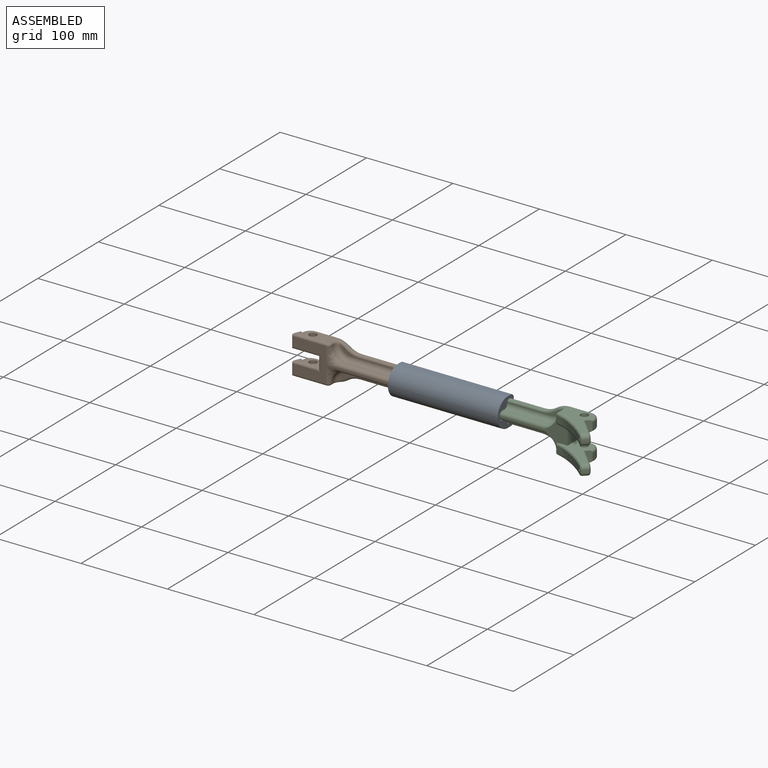
[diagram: assembled view]
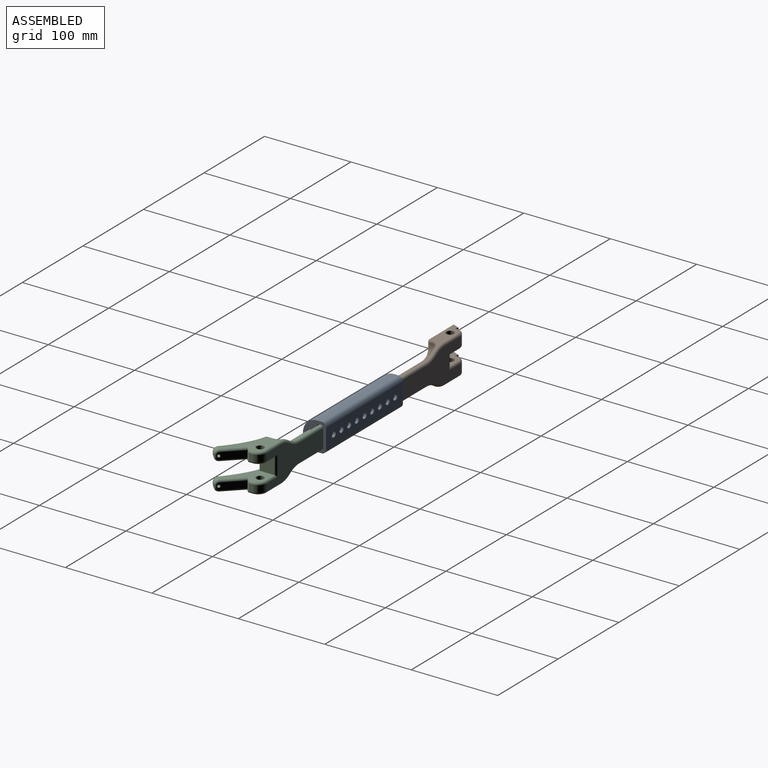
[diagram: assembled view, second angle]
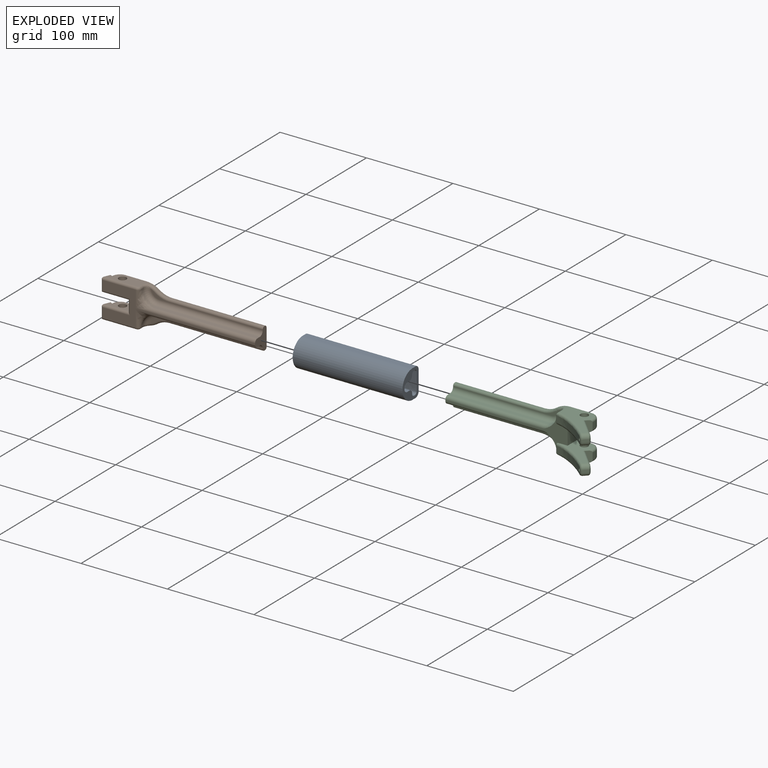
[diagram: exploded view]
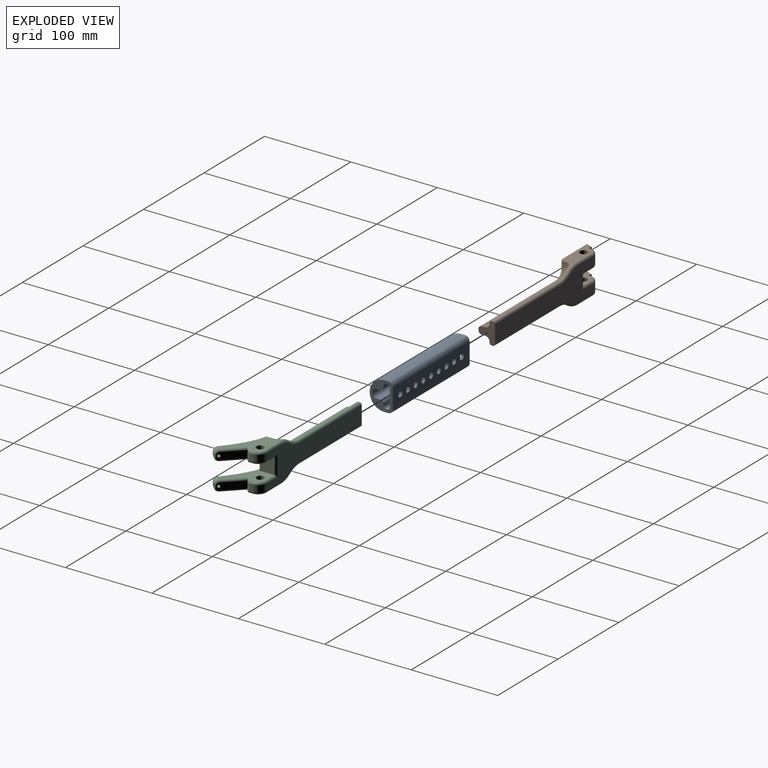
[diagram: exploded view, second angle]
ASSEMBLY  parts=3 mates=2
PART A: 18 faces, bbox 127x26.7x33 mm
  f0: cylinder r=3.38mm len=6.76mm, axis (0,1,0), area 67mm2, adj f9,f17
  f1: cylinder r=3.38mm len=6.76mm, axis (0,1,0), area 67mm2, adj f9,f17
  f2: cylinder r=3.38mm len=6.76mm, axis (0,1,0), area 67mm2, adj f9,f17
  f3: cylinder r=3.38mm len=6.76mm, axis (0,1,0), area 67mm2, adj f9,f17
  f4: cylinder r=3.38mm len=6.76mm, axis (0,1,0), area 67mm2, adj f9,f17
  f5: cylinder r=3.38mm len=6.76mm, axis (0,1,0), area 67mm2, adj f9,f17
  f6: cylinder r=3.38mm len=6.76mm, axis (0,1,0), area 67mm2, adj f9,f17
  f7: cylinder r=3.38mm len=6.76mm, axis (0,1,0), area 67mm2, adj f9,f17
  f8: cylinder r=3.38mm len=6.76mm, axis (0,1,0), area 67mm2, adj f9,f17
  f9: plane 127x22.86mm, normal (0,1,0), area 2580.5mm2, adj f0,f1,f2,f3,f4,f5,f6,f7
  f10: plane 127x5.08mm, normal (0,0,1), area 645.2mm2, adj f12,f13,f14,f15
  f11: plane 127x5.08mm, normal (0,0,-1), area 645.2mm2, adj f12,f13,f14,f16
  f12: plane 33.02x26.67mm, normal (1,0,0), area 437.3mm2, adj f9,f10,f11,f14,f15,f16,f17
  f13: plane 33.02x26.67mm, normal (-1,0,0), area 437.3mm2, adj f9,f10,f11,f14,f15,f16,f17
  f14: cylinder r=16.51mm len=127mm, axis (1,0,0), area 6587.2mm2, adj f10,f11,f12,f13
  f15: cylinder r=5.08mm len=127mm, axis (1,0,0), area 1013.4mm2, adj f9,f10,f12,f13
  f16: cylinder r=5.08mm len=127mm, axis (-1,0,0), area 1013.4mm2, adj f9,f11,f12,f13
  f17: extruded ~127x26.46mm, area 9896.4mm2, adj f0,f1,f2,f3,f4,f5,f6,f7
PART B: 84 faces, bbox 178.2x20.6x52.9 mm
  f0: plane 162.38x39.37mm, normal (0,1,0), area 3722.1mm2, adj f18,f19,f42,f43,f44,f45,f47,f48
  f1: cylinder r=15.24mm len=15.24mm, axis (0,1,0), area 39.4mm2, adj f3,f10,f66,f67,f80
  f2: bspline ~16.54x16.54mm, area 114.4mm2, adj f4,f12,f33,f34,f59,f72
  f3: bspline ~16.54x16.54mm, area 114.4mm2, adj f1,f10,f31,f32,f60,f79
  f4: bspline ~14.04x14.04mm, area 46.7mm2, adj f2,f33,f34
  f5: cylinder r=25.4mm len=14.81mm, axis (0,1,0), area 44mm2, adj f9,f29,f37,f43,f71,f72,f73,f74
  f6: plane 176.35x39.38mm, normal (0,-1,0), area 1111.2mm2, adj f21,f24,f31,f32,f33,f34,f56,f57
  f7: plane 129.21x8.46mm, normal (0,-1,0), area 119.5mm2, adj f38,f39,f40,f65,f66,f83
  f8: plane 38.77x13.97mm, normal (0,0,-1), area 406.8mm2, adj f16,f23,f25,f30,f46,f47,f76,f77
  f9: plane 38.77x13.97mm, normal (0,0,1), area 406.8mm2, adj f5,f17,f20,f22,f41,f42,f69,f70
  f10: plane 119.2x3.81mm, normal (0,0,-1), area 454.1mm2, adj f1,f3,f31,f65,f83
  f11: plane 129.22x8.46mm, normal (0,-1,0), area 119.5mm2, adj f35,f36,f37,f61,f62,f83
  f12: plane 119.2x3.81mm, normal (0,0,1), area 454.2mm2, adj f2,f34,f59,f61,f83
  f13: plane 29.5x13.97mm, normal (0,0,-1), area 277.3mm2, adj f14,f17,f20,f22,f54,f55,f56
  f14: plane 13.97x12.7mm, normal (-1,0,0), area 177.4mm2, adj f13,f15,f53,f57
  f15: plane 29.5x13.97mm, normal (0,0,1), area 277.3mm2, adj f14,f16,f23,f25,f51,f52,f58
  f16: cylinder r=4.45mm len=15.88mm, axis (0,0,1), area 443.4mm2, adj f8,f15
  f17: cylinder r=4.45mm len=15.88mm, axis (0,0,1), area 443.4mm2, adj f9,f13
  f18: cylinder r=10.16mm len=10.8mm, axis (0,0,-1), area 172.3mm2, adj f0,f23,f46,f51
  f19: cylinder r=10.16mm len=10.8mm, axis (0,0,-1), area 172.3mm2, adj f0,f20,f41,f55
  f20: plane 16.59x4.51mm, normal (0.39,0.92,0), area 23.2mm2, adj f9,f13,f19,f22,f41,f55
  f21: plane 14.39x1.74mm, normal (-0.39,-0.92,0), area 16.3mm2, adj f6,f22,f56,f69
  f22: plane 15.98x9mm, normal (-0.92,0.39,0), area 152.2mm2, adj f9,f13,f20,f21,f56,f69
  f23: plane 16.59x4.51mm, normal (0.39,0.92,0), area 23.2mm2, adj f8,f15,f18,f25,f46,f51
  f24: plane 14.39x1.74mm, normal (-0.39,-0.92,0), area 16.3mm2, adj f6,f25,f58,f76
  f25: plane 15.98x9mm, normal (-0.92,0.39,0), area 152.2mm2, adj f8,f15,f23,f24,f58,f76
  f26: plane 108.26x1.27mm, normal (0,0,1), area 137.5mm2, adj f29,f35,f45,f83
  f27: plane 108.26x1.27mm, normal (0,0,-1), area 137.5mm2, adj f28,f38,f50,f83
  f28: cylinder r=25.4mm len=14.81mm, axis (0,-1,0), area 20.1mm2, adj f27,f30,f39,f49
  f29: cylinder r=25.4mm len=14.81mm, axis (0,1,0), area 20.1mm2, adj f5,f26,f36,f44
  f30: cylinder r=25.4mm len=14.81mm, axis (0,-1,0), area 44.1mm2, adj f8,f28,f40,f48,f78,f79,f80,f81
  f31: cylinder r=3.81mm len=138.25mm, axis (-1,0,0), area 758.9mm2, adj f3,f6,f10,f60,f83
  f32: cylinder r=3.81mm len=19.05mm, axis (0,0,1), area 42.2mm2, adj f3,f6,f60,f77,f78
  f33: cylinder r=3.81mm len=19.05mm, axis (0,0,-1), area 42.2mm2, adj f2,f4,f6,f70,f71
  f34: cylinder r=3.81mm len=138.25mm, axis (1,0,0), area 758.9mm2, adj f2,f4,f6,f12,f83
  f35: cylinder r=2.54mm len=108.26mm, axis (-1,0,0), area 431.9mm2, adj f11,f26,f36,f83
  f36: torus R=27.94mm, axis (0,-1,0), area 65.4mm2, adj f11,f29,f35,f37
  f37: torus R=22.86mm, axis (0,-1,0), area 30.1mm2, adj f5,f11,f36,f63,f64
  f38: cylinder r=2.54mm len=108.26mm, axis (1,0,0), area 431.9mm2, adj f7,f27,f39,f83
  f39: torus R=27.94mm, axis (0,1,0), area 65.4mm2, adj f7,f28,f38,f40
  f40: torus R=22.86mm, axis (0,1,0), area 30.1mm2, adj f7,f30,f39,f67,f68
  f41: torus R=7.62mm, axis (0,0,1), area 60.5mm2, adj f9,f19,f20,f42
  f42: cylinder r=2.54mm len=24.5mm, axis (-1,0,0), area 97.8mm2, adj f0,f9,f41,f43
  f43: torus R=22.86mm, axis (0,-1,0), area 60.8mm2, adj f0,f5,f42,f44
  f44: torus R=27.94mm, axis (0,-1,0), area 65.4mm2, adj f0,f29,f43,f45
  f45: cylinder r=2.54mm len=108.26mm, axis (-1,0,0), area 431.9mm2, adj f0,f26,f44,f83
  f46: torus R=7.62mm, axis (0,0,1), area 60.5mm2, adj f8,f18,f23,f47
  f47: cylinder r=2.54mm len=24.5mm, axis (1,0,0), area 97.8mm2, adj f0,f8,f46,f48
  f48: torus R=22.86mm, axis (0,-1,0), area 60.8mm2, adj f0,f30,f47,f49
  f49: torus R=27.94mm, axis (0,-1,0), area 65.4mm2, adj f0,f28,f48,f50
  f50: cylinder r=2.54mm len=108.26mm, axis (1,0,0), area 431.9mm2, adj f0,f27,f49,f83
  f51: torus R=7.62mm, axis (0,0,1), area 60.5mm2, adj f15,f18,f23,f52
  f52: cylinder r=2.54mm len=17.78mm, axis (-1,0,0), area 65.9mm2, adj f0,f15,f51,f53
  f53: cylinder r=2.54mm len=17.78mm, axis (0,0,-1), area 60.8mm2, adj f0,f14,f52,f54
  f54: cylinder r=2.54mm len=17.78mm, axis (1,0,0), area 65.9mm2, adj f0,f13,f53,f55
  f55: torus R=7.62mm, axis (0,0,1), area 60.5mm2, adj f13,f19,f20,f54
  f56: cylinder r=2.54mm len=32.92mm, axis (-1,0,0), area 124.3mm2, adj f6,f13,f21,f22,f57
  f57: cylinder r=2.54mm len=17.78mm, axis (0,0,1), area 60.8mm2, adj f6,f14,f56,f58
  f58: cylinder r=2.54mm len=32.92mm, axis (1,0,0), area 124.3mm2, adj f6,f15,f24,f25,f57
  f59: cylinder r=15.24mm len=15.24mm, axis (0,-1,0), area 39.4mm2, adj f2,f12,f62,f63,f73
  f60: bspline ~14.04x14.04mm, area 46.7mm2, adj f3,f31,f32
  f61: cylinder r=5.08mm len=119.2mm, axis (-1,0,0), area 951.2mm2, adj f11,f12,f62,f83
  f62: torus R=10.16mm, axis (0,-1,0), area 149.9mm2, adj f11,f59,f61,f63
  f63: bspline ~6.19x5.77mm, area 13mm2, adj f37,f59,f62,f64,f75
  f64: bspline ~8.19x8.07mm, area 9.6mm2, adj f37,f63,f74
  f65: cylinder r=5.08mm len=119.2mm, axis (1,0,0), area 951.2mm2, adj f7,f10,f66,f83
  f66: torus R=10.16mm, axis (0,1,0), area 149.9mm2, adj f1,f7,f65,f67
  f67: bspline ~5.71x5.46mm, area 13mm2, adj f1,f40,f66,f68,f81
  f68: bspline ~8.19x8.07mm, area 9.6mm2, adj f40,f67,f82
  f69: cylinder r=2.54mm len=39.26mm, axis (1,0,0), area 154.5mm2, adj f6,f9,f21,f22,f70
  f70: torus R=1.27mm, axis (0,0,1), area 3.5mm2, adj f9,f33,f69,f71
  f71: bspline ~4.28x3.63mm, area 14.1mm2, adj f5,f33,f70,f72
  f72: bspline ~3.6x2.54mm, area 8.9mm2, adj f2,f5,f71,f73
  f73: cylinder r=2.54mm len=2.53mm, axis (0,1,0), area 7mm2, adj f5,f59,f72,f75
  f74: bspline ~8.09x6.1mm, area 24.7mm2, adj f5,f64,f75
  f75: bspline ~2.54x2.44mm, area 0.2mm2, adj f5,f63,f73,f74
  f76: cylinder r=2.54mm len=39.27mm, axis (-1,0,0), area 154.5mm2, adj f6,f8,f24,f25,f77
  f77: torus R=1.27mm, axis (0,0,1), area 3.4mm2, adj f8,f32,f76,f78
  f78: bspline ~3.59x3.43mm, area 14.1mm2, adj f30,f32,f77,f79
  f79: bspline ~3.6x2.54mm, area 8.9mm2, adj f3,f30,f78,f80
  f80: cylinder r=2.54mm len=2.53mm, axis (0,-1,0), area 7mm2, adj f1,f30,f79,f81
  f81: bspline ~2.54x2.44mm, area 0.2mm2, adj f30,f67,f80,f82
  f82: bspline ~8.09x6.1mm, area 24.7mm2, adj f30,f68,f81
  f83: plane 25.4x19.05mm, normal (1,0,0), area 273.5mm2, adj f0,f6,f7,f10,f11,f12,f26,f27
PART C: 119 faces, bbox 184.5x50.8x67 mm
  f0: plane 156.56x39.37mm, normal (0,1,0), area 3490.9mm2, adj f22,f23,f45,f46,f47,f48,f51,f52
  f1: extruded ~45.27x26.58mm, area 390.1mm2, adj f92,f93,f94,f95,f96,f97,f109,f117
  f2: extruded ~45.27x26.58mm, area 390.1mm2, adj f81,f82,f83,f84,f85,f86,f113,f116
  f3: plane 21.09x20.58mm, normal (0.72,0.7,0), area 213.5mm2, adj f24,f98,f99,f100,f101,f102,f117
  f4: plane 3.8x3.71mm, normal (0.7,-0.72,0), area 13.5mm2, adj f35,f38,f95,f100
  f5: cylinder r=25.4mm len=15.98mm, axis (0,-1,0), area 46.3mm2, adj f13,f30,f42,f53,f87,f88,f89,f90
  f6: plane 141.39x38.7mm, normal (0,-1,0), area 573.1mm2, adj f7,f16,f17,f28,f29,f33,f34,f65
  f7: plane 44.79x41.09mm, normal (0,0,-1), area 599.6mm2, adj f6,f17,f19,f25,f36,f57,f58,f59
  f8: plane 46.83x41.09mm, normal (0,0,1), area 752mm2, adj f19,f25,f32,f37,f48,f49,f50,f82
  f9: plane 123.39x8.46mm, normal (0,-1,0), area 115.8mm2, adj f42,f43,f44,f74,f75,f118
  f10: plane 113.38x3.81mm, normal (0,0,-1), area 432mm2, adj f33,f66,f75,f118
  f11: plane 123.39x8.46mm, normal (0,-1,0), area 115.8mm2, adj f39,f40,f41,f70,f71,f118
  f12: plane 113.38x3.81mm, normal (0,0,1), area 432mm2, adj f34,f64,f71,f118
  f13: plane 46.83x41.09mm, normal (0,0,-1), area 752mm2, adj f5,f18,f24,f38,f54,f55,f56,f93
  f14: plane 7.62x3.81mm, normal (1,0,0), area 29mm2, adj f23,f25,f50,f57
  f15: plane 7.62x3.81mm, normal (1,0,0), area 29mm2, adj f22,f24,f56,f63
  f16: plane 44.79x41.09mm, normal (0,0,1), area 599.6mm2, adj f6,f17,f18,f24,f35,f61,f62,f63
  f17: plane 19.05x16.51mm, normal (1,0,0), area 314.5mm2, adj f6,f7,f16,f60
  f18: cylinder r=4.45mm len=12.7mm, axis (0,0,1), area 354.7mm2, adj f13,f16
  f19: cylinder r=4.45mm len=12.7mm, axis (0,0,1), area 354.7mm2, adj f7,f8
  f20: plane 21.09x20.58mm, normal (0.72,0.7,0), area 213.5mm2, adj f25,f103,f104,f105,f106,f107,f116
  f21: plane 3.8x3.71mm, normal (0.7,-0.72,0), area 13.5mm2, adj f36,f37,f84,f105
  f22: cylinder r=10.16mm len=10.16mm, axis (0,0,1), area 121.6mm2, adj f0,f15,f55,f62
  f23: cylinder r=10.16mm len=10.16mm, axis (0,0,1), area 121.6mm2, adj f0,f14,f49,f58
  f24: plane 13.77x7.69mm, normal (0.71,-0.71,0), area 85.5mm2, adj f3,f13,f15,f16,f56,f63,f98,f102
  f25: plane 13.77x7.69mm, normal (0.71,-0.71,0), area 85.5mm2, adj f7,f8,f14,f20,f50,f57,f103,f107
  f26: plane 102.44x1.27mm, normal (0,0,1), area 130.1mm2, adj f31,f41,f45,f118
  f27: plane 102.44x1.27mm, normal (0,0,-1), area 130.1mm2, adj f30,f44,f51,f118
  f28: plane 8x3.13mm, normal (-1,0,0), area 1.1mm2, adj f6,f65,f80,f112,f113,f114
  f29: plane 8x3.13mm, normal (-1,0,0), area 1.1mm2, adj f6,f67,f91,f108,f109,f110
  f30: cylinder r=25.4mm len=14.81mm, axis (0,-1,0), area 20.1mm2, adj f5,f27,f43,f52
  f31: cylinder r=25.4mm len=14.81mm, axis (0,1,0), area 20.1mm2, adj f26,f32,f40,f46
  f32: cylinder r=25.4mm len=15.98mm, axis (0,1,0), area 46.3mm2, adj f8,f31,f39,f47,f76,f77,f78,f79
  f33: cylinder r=3.81mm len=113.38mm, axis (-1,0,0), area 678.5mm2, adj f6,f10,f67,f118
  f34: cylinder r=3.81mm len=113.38mm, axis (1,0,0), area 678.5mm2, adj f6,f12,f65,f118
  f35: cylinder r=5.08mm len=7.44mm, axis (0.72,0.7,0), area 42.9mm2, adj f4,f16,f96,f99
  f36: cylinder r=5.08mm len=7.44mm, axis (-0.72,-0.7,0), area 42.9mm2, adj f7,f21,f85,f106
  f37: cylinder r=5.08mm len=7.44mm, axis (0.72,0.7,0), area 42.9mm2, adj f8,f21,f83,f104
  f38: cylinder r=5.08mm len=7.44mm, axis (-0.72,-0.7,0), area 42.9mm2, adj f4,f13,f94,f101
  f39: torus R=22.86mm, axis (0,-1,0), area 30.1mm2, adj f11,f32,f40,f68,f69
  f40: torus R=27.94mm, axis (0,-1,0), area 65.4mm2, adj f11,f31,f39,f41
  f41: cylinder r=2.54mm len=102.44mm, axis (-1,0,0), area 408.7mm2, adj f11,f26,f40,f118
  f42: torus R=22.86mm, axis (0,1,0), area 30.1mm2, adj f5,f9,f43,f72,f73
  f43: torus R=27.94mm, axis (0,1,0), area 65.4mm2, adj f9,f30,f42,f44
  f44: cylinder r=2.54mm len=102.44mm, axis (1,0,0), area 408.7mm2, adj f9,f27,f43,f118
  f45: cylinder r=2.54mm len=102.44mm, axis (-1,0,0), area 408.7mm2, adj f0,f26,f46,f118
  f46: torus R=27.94mm, axis (0,-1,0), area 65.4mm2, adj f0,f31,f45,f47
  f47: torus R=22.86mm, axis (0,-1,0), area 60.8mm2, adj f0,f32,f46,f48
  f48: cylinder r=2.54mm len=24.5mm, axis (-1,0,0), area 97.8mm2, adj f0,f8,f47,f49
  f49: torus R=7.62mm, axis (0,0,1), area 57.9mm2, adj f8,f23,f48,f50
  f50: cylinder r=2.54mm len=6.35mm, axis (0,1,0), area 20.3mm2, adj f8,f14,f25,f49
  f51: cylinder r=2.54mm len=102.44mm, axis (1,0,0), area 408.7mm2, adj f0,f27,f52,f118
  f52: torus R=27.94mm, axis (0,-1,0), area 65.4mm2, adj f0,f30,f51,f53
  f53: torus R=22.86mm, axis (0,-1,0), area 60.8mm2, adj f0,f5,f52,f54
  f54: cylinder r=2.54mm len=24.5mm, axis (1,0,0), area 97.8mm2, adj f0,f13,f53,f55
  f55: torus R=7.62mm, axis (0,0,1), area 57.9mm2, adj f13,f22,f54,f56
  f56: cylinder r=2.54mm len=6.35mm, axis (0,-1,0), area 20.3mm2, adj f13,f15,f24,f55
  f57: cylinder r=2.54mm len=6.35mm, axis (0,1,0), area 20.3mm2, adj f7,f14,f25,f58
  f58: torus R=7.62mm, axis (0,0,-1), area 57.9mm2, adj f7,f23,f57,f59
  f59: cylinder r=2.54mm len=17.78mm, axis (1,0,0), area 65.9mm2, adj f0,f7,f58,f60
  f60: cylinder r=2.54mm len=24.13mm, axis (0,0,1), area 86.1mm2, adj f0,f17,f59,f61
  f61: cylinder r=2.54mm len=17.78mm, axis (-1,0,0), area 65.9mm2, adj f0,f16,f60,f62
  f62: torus R=7.62mm, axis (0,0,-1), area 57.9mm2, adj f16,f22,f61,f63
  f63: cylinder r=2.54mm len=6.35mm, axis (0,-1,0), area 20.3mm2, adj f15,f16,f24,f62
  f64: cylinder r=15.24mm len=15.24mm, axis (0,1,0), area 91.4mm2, adj f12,f65,f69,f70,f78
  f65: torus R=19.05mm, axis (1,0,0), area 100.7mm2, adj f6,f28,f34,f64,f79
  f66: cylinder r=15.24mm len=15.24mm, axis (0,-1,0), area 91.4mm2, adj f10,f67,f73,f74,f89
  f67: torus R=19.05mm, axis (1,0,0), area 100.7mm2, adj f6,f29,f33,f66,f90
  f68: bspline ~8.19x8.07mm, area 9.6mm2, adj f39,f69,f76
  f69: bspline ~5.71x5.46mm, area 13mm2, adj f39,f64,f68,f70,f77
  f70: torus R=10.16mm, axis (0,-1,0), area 149.9mm2, adj f11,f64,f69,f71
  f71: cylinder r=5.08mm len=113.38mm, axis (-1,0,0), area 904.7mm2, adj f11,f12,f70,f118
  f72: bspline ~8.19x8.07mm, area 9.6mm2, adj f42,f73,f87
  f73: bspline ~6.19x5.77mm, area 13mm2, adj f42,f66,f72,f74,f88
  f74: torus R=10.16mm, axis (0,1,0), area 149.9mm2, adj f9,f66,f73,f75
  f75: cylinder r=5.08mm len=113.38mm, axis (1,0,0), area 904.7mm2, adj f9,f10,f74,f118
  f76: bspline ~8.09x6.1mm, area 24.7mm2, adj f32,f68,f77
  f77: bspline ~2.54x2.44mm, area 0.2mm2, adj f32,f69,f76,f78
  f78: cylinder r=2.54mm len=3.96mm, axis (0,-1,0), area 15.4mm2, adj f32,f64,f77,f79
  f79: bspline ~6.09x2.58mm, area 2.9mm2, adj f32,f65,f78,f80
  f80: cylinder r=2.54mm len=3.13mm, axis (0,1,0), area 10.6mm2, adj f28,f32,f79,f115
  f81: bspline ~6.13x3.75mm, area 5.9mm2, adj f2,f32,f82,f114,f115
  f82: bspline ~50.66x29.85mm, area 196.9mm2, adj f2,f8,f81,f83
  f83: bspline ~6.18x6.06mm, area 25.4mm2, adj f2,f37,f82,f84
  f84: cylinder r=2.54mm len=3.53mm, axis (0,0,-1), area 9.9mm2, adj f2,f21,f83,f85
  f85: bspline ~6.22x6.18mm, area 25.4mm2, adj f2,f36,f84,f86
  f86: bspline ~49.5x29.64mm, area 202.1mm2, adj f2,f6,f7,f85,f112
  f87: bspline ~8.09x6.1mm, area 24.7mm2, adj f5,f72,f88
  f88: bspline ~3.46x2.6mm, area 0.2mm2, adj f5,f73,f87,f89
  f89: cylinder r=2.54mm len=3.96mm, axis (0,1,0), area 15.4mm2, adj f5,f66,f88,f90
  f90: bspline ~6.09x2.58mm, area 2.9mm2, adj f5,f67,f89,f91
  f91: cylinder r=2.54mm len=3.13mm, axis (0,-1,0), area 10.6mm2, adj f5,f29,f90,f111
  f92: bspline ~6.13x3.75mm, area 5.9mm2, adj f1,f5,f93,f110,f111
  f93: bspline ~50.66x29.85mm, area 196.9mm2, adj f1,f13,f92,f94
  f94: bspline ~6.22x6.18mm, area 25.4mm2, adj f1,f38,f93,f95
  f95: cylinder r=2.54mm len=3.53mm, axis (0,0,-1), area 9.9mm2, adj f1,f4,f94,f96
  f96: bspline ~6.22x6.18mm, area 25.4mm2, adj f1,f35,f95,f97
  f97: bspline ~49.5x29.64mm, area 202.1mm2, adj f1,f6,f16,f96,f108
  f98: cylinder r=2.54mm len=21.04mm, axis (-0.7,0.72,0), area 107.2mm2, adj f3,f16,f24,f99
  f99: torus R=2.54mm, axis (-0.72,-0.7,0), area 26mm2, adj f3,f35,f98,f100
  f100: cylinder r=2.54mm len=3.59mm, axis (0,0,1), area 10.1mm2, adj f3,f4,f99,f101
  f101: torus R=2.54mm, axis (-0.72,-0.7,0), area 26mm2, adj f3,f38,f100,f102
  f102: cylinder r=2.54mm len=21.04mm, axis (0.7,-0.72,0), area 107.2mm2, adj f3,f13,f24,f101
  f103: cylinder r=2.54mm len=21.04mm, axis (-0.7,0.72,0), area 107.2mm2, adj f8,f20,f25,f104
  f104: torus R=2.54mm, axis (-0.72,-0.7,0), area 26mm2, adj f20,f37,f103,f105
  f105: cylinder r=2.54mm len=3.59mm, axis (0,0,1), area 10.1mm2, adj f20,f21,f104,f106
  f106: torus R=2.54mm, axis (-0.72,-0.7,0), area 26mm2, adj f20,f36,f105,f107
  f107: cylinder r=2.54mm len=21.04mm, axis (-0.7,0.72,0), area 107.2mm2, adj f7,f20,f25,f106
  f108: bspline ~2.81x2.28mm, area 4.3mm2, adj f6,f29,f97,f109
  f109: cylinder r=1.52mm len=7.56mm, axis (0,0,-1), area 15.7mm2, adj f1,f29,f108,f110
  f110: bspline ~1.5x1.22mm, area 0.2mm2, adj f29,f92,f109,f111
  f111: bspline ~3.13x2.44mm, area 3.5mm2, adj f91,f92,f110
  f112: bspline ~2.81x2.28mm, area 4.3mm2, adj f6,f28,f86,f113
  f113: cylinder r=1.52mm len=7.56mm, axis (0,0,-1), area 15.7mm2, adj f2,f28,f112,f114
  f114: bspline ~1.5x1.22mm, area 0.2mm2, adj f28,f81,f113,f115
  f115: bspline ~2.65x2.44mm, area 3.5mm2, adj f80,f81,f114
  f116: cylinder r=1.63mm len=9.85mm, axis (0.72,0.7,0), area 108.4mm2, adj f2,f20
  f117: cylinder r=1.63mm len=9.85mm, axis (0.72,0.7,0), area 108.4mm2, adj f1,f3
  f118: plane 25.4x19.05mm, normal (-1,0,0), area 273.5mm2, adj f0,f6,f9,f10,f11,f12,f26,f27
PLACE A t=(3.28,-32.82,106.52)mm fixed
PLACE B t=(45.87,-32.23,106.52)mm
PLACE C t=(-33.97,-32.23,106.52)mm
MATE slider B.f83 <-> A.f14  axis (1,0,0) through (-192.67,-39.17,103.35)mm
MATE slider C.f118 <-> A.f14  axis (-1,0,0) through (-192.67,-39.17,103.35)mm
